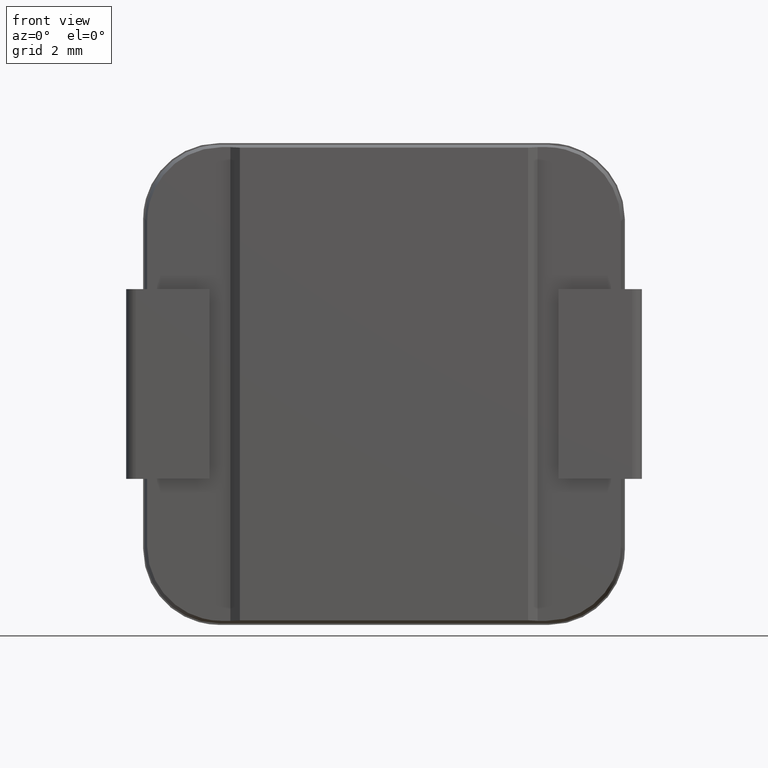
[diagram: clean part render]
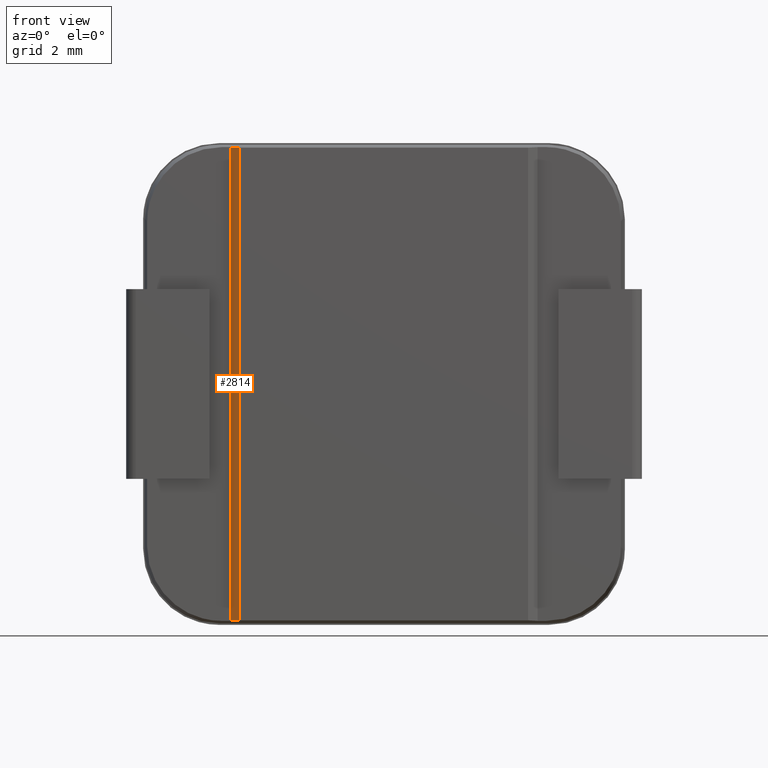
[diagram: same view with one face highlighted and labeled with its STEP entity id]
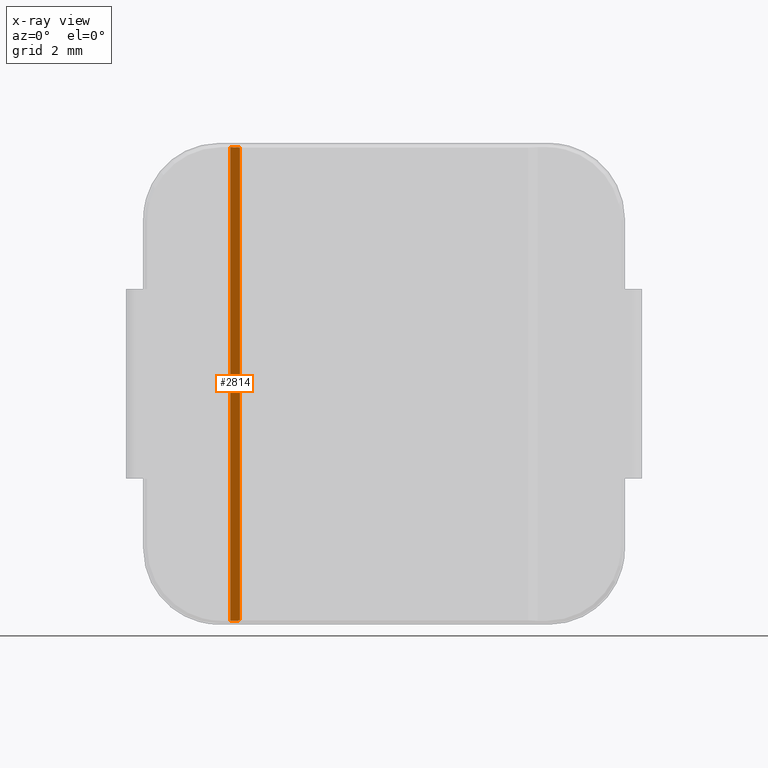
[diagram: x-ray of the same camera — body ghosted, the highlighted face saturated]
A machine part, front view. The second image highlights one B-rep face of the part: STEP entity #2814.
The next image is the same camera in x-ray: the body ghosted, the highlighted face saturated — about 0% of this face is hidden behind the body in this view.
In plain terms, the highlighted planar face has unit normal (0.6247, 0.7809, 0).
Its self-contained STEP definition (entity closure, byte-faithful):
#247 = ORIENTED_EDGE ( 'NONE', *, *, #5470, .F. ) ;
#295 = CARTESIAN_POINT ( 'NONE',  ( -3.799999999999998934, 0.0000000000000000000, 6.231854956259334166 ) ) ;
#307 = CARTESIAN_POINT ( 'NONE',  ( -4.049999999999998934, 0.1999999999999996503, -6.350000000000001421 ) ) ;
#329 = DIRECTION ( 'NONE',  ( -0.0000000000000000000, -0.0000000000000000000, 1.000000000000000000 ) ) ;
#382 = LINE ( 'NONE', #665, #5740 ) ;
#612 = ORIENTED_EDGE ( 'NONE', *, *, #4065, .T. ) ;
#665 = CARTESIAN_POINT ( 'NONE',  ( -5.963874275550928417, 1.731099420440741721, 6.335914063897626569 ) ) ;
#725 = DIRECTION ( 'NONE',  ( 0.6246950475544238435, 0.7808688094430307203, 0.0000000000000000000 ) ) ;
#824 = VECTOR ( 'NONE', #329, 1000.000000000000000 ) ;
#1083 = DIRECTION ( 'NONE',  ( 0.7803188364368910390, -0.6242550691495121207, 0.03752495360309219402 ) ) ;
#1184 = EDGE_LOOP ( 'NONE', ( #5123, #247, #612, #5340 ) ) ;
#1595 = VERTEX_POINT ( 'NONE', #1709 ) ;
#1709 = CARTESIAN_POINT ( 'NONE',  ( -4.049999999999999822, 0.2000000000000005107, -6.243877270680974867 ) ) ;
#1884 = AXIS2_PLACEMENT_3D ( 'NONE', #307, #725, #3424 ) ;
#1920 = VERTEX_POINT ( 'NONE', #295 ) ;
#2292 = VERTEX_POINT ( 'NONE', #3607 ) ;
#2324 = VECTOR ( 'NONE', #4635, 1000.000000000000000 ) ;
#2535 = LINE ( 'NONE', #4252, #2324 ) ;
#2814 = ADVANCED_FACE ( 'NONE', ( #4160 ), #5284, .F. ) ;
#3391 = DIRECTION ( 'NONE',  ( -0.7803188364368910390, 0.6242550691495122317, 0.03752495360309251321 ) ) ;
#3424 = DIRECTION ( 'NONE',  ( -0.7808688094430306093, 0.6246950475544237324, 0.0000000000000000000 ) ) ;
#3607 = CARTESIAN_POINT ( 'NONE',  ( -3.799999999999998046, 0.0000000000000000000, -6.231854956259334166 ) ) ;
#3721 = CARTESIAN_POINT ( 'NONE',  ( 1.720412004056651067, -4.416329603245314317, -5.966382440860261482 ) ) ;
#3864 = EDGE_CURVE ( 'NONE', #1595, #2292, #5270, .T. ) ;
#4065 = EDGE_CURVE ( 'NONE', #1920, #5495, #382, .T. ) ;
#4160 = FACE_OUTER_BOUND ( 'NONE', #1184, .T. ) ;
#4252 = CARTESIAN_POINT ( 'NONE',  ( -3.799999999999998934, 0.0000000000000000000, 0.0000000000000000000 ) ) ;
#4635 = DIRECTION ( 'NONE',  ( 0.0000000000000000000, 0.0000000000000000000, -1.000000000000000000 ) ) ;
#4811 = CARTESIAN_POINT ( 'NONE',  ( -4.049999999999998934, 0.1999999999999996503, -6.350000000000001421 ) ) ;
#4995 = VECTOR ( 'NONE', #1083, 1000.000000000000114 ) ;
#5123 = ORIENTED_EDGE ( 'NONE', *, *, #3864, .T. ) ;
#5136 = CARTESIAN_POINT ( 'NONE',  ( -4.049999999999998934, 0.1999999999999995393, 6.243877270680973091 ) ) ;
#5270 = LINE ( 'NONE', #3721, #4995 ) ;
#5284 = PLANE ( 'NONE',  #1884 ) ;
#5340 = ORIENTED_EDGE ( 'NONE', *, *, #5522, .F. ) ;
#5470 = EDGE_CURVE ( 'NONE', #1920, #2292, #2535, .T. ) ;
#5495 = VERTEX_POINT ( 'NONE', #5136 ) ;
#5522 = EDGE_CURVE ( 'NONE', #1595, #5495, #5772, .T. ) ;
#5740 = VECTOR ( 'NONE', #3391, 1000.000000000000000 ) ;
#5772 = LINE ( 'NONE', #4811, #824 ) ;